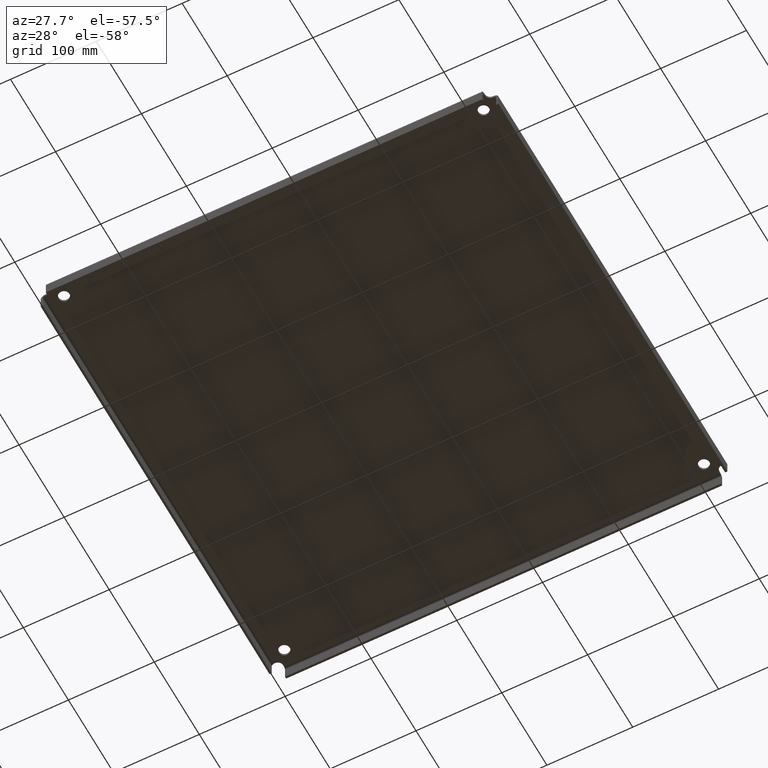
[diagram: clean part render]
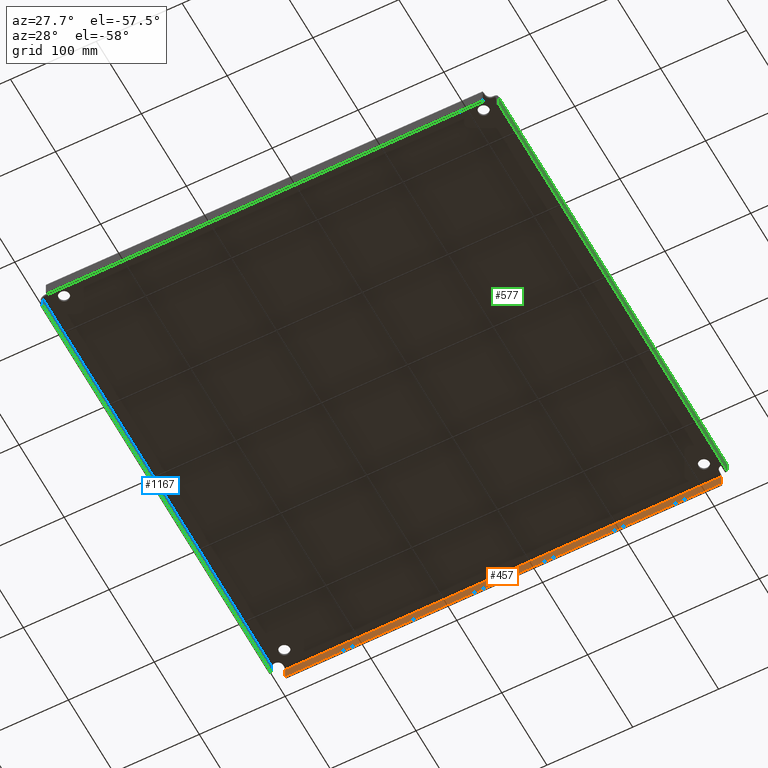
[diagram: same view with three faces highlighted in distinct colors, each labeled with its STEP entity id]
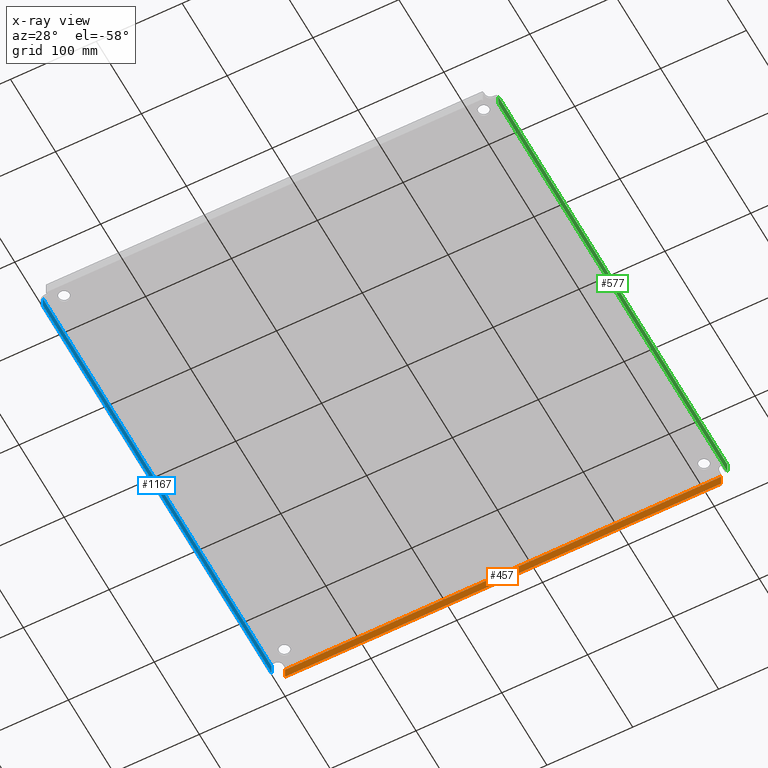
[diagram: x-ray of the same camera — body ghosted, the three highlighted faces saturated]
A machine part, auxiliary view with three faces highlighted in distinct colors.
The next image is the same camera in x-ray (body ghosted, the three faces saturated) — at least one of them is partly hidden behind the body in this view.
Their STEP definitions:

[orange] entity #457 — the highlighted planar face has unit normal (0, 1, 0).
#3 = CARTESIAN_POINT ( 'NONE',  ( -3.316296614246993200, -24.21211278189821300, -29.37476460107778600 ) ) ;
#6 = CARTESIAN_POINT ( 'NONE',  ( -3.316296614246993200, -24.21211278189821300, 0.2708774962825973300 ) ) ;
#29 = VECTOR ( 'NONE', #493, 39.37007874015748100 ) ;
#39 = EDGE_LOOP ( 'NONE', ( #1387, #1137, #288, #364 ) ) ;
#65 = FACE_OUTER_BOUND ( 'NONE', #39, .T. ) ;
#79 = VECTOR ( 'NONE', #112, 39.37007874015748100 ) ;
#108 = DIRECTION ( 'NONE',  ( 0.0000000000000000000, -0.0000000000000000000, 1.000000000000000000 ) ) ;
#112 = DIRECTION ( 'NONE',  ( 1.000000000000000000, 0.0000000000000000000, 0.0000000000000000000 ) ) ;
#159 = CARTESIAN_POINT ( 'NONE',  ( -23.31629661424701200, -24.21211278189821300, 0.2708774962825973300 ) ) ;
#173 = VERTEX_POINT ( 'NONE', #1089 ) ;
#265 = VECTOR ( 'NONE', #1243, 39.37007874015748100 ) ;
#288 = ORIENTED_EDGE ( 'NONE', *, *, #888, .T. ) ;
#343 = VECTOR ( 'NONE', #1385, 39.37007874015748100 ) ;
#364 = ORIENTED_EDGE ( 'NONE', *, *, #606, .T. ) ;
#457 = ADVANCED_FACE ( 'NONE', ( #65 ), #795, .F. ) ;
#493 = DIRECTION ( 'NONE',  ( 0.0000000000000000000, 0.0000000000000000000, -1.000000000000000000 ) ) ;
#596 = VERTEX_POINT ( 'NONE', #3 ) ;
#606 = EDGE_CURVE ( 'NONE', #698, #173, #695, .T. ) ;
#617 = EDGE_CURVE ( 'NONE', #173, #596, #649, .T. ) ;
#649 = LINE ( 'NONE', #6, #343 ) ;
#695 = LINE ( 'NONE', #1159, #79 ) ;
#698 = VERTEX_POINT ( 'NONE', #1053 ) ;
#767 = AXIS2_PLACEMENT_3D ( 'NONE', #1374, #1144, #108 ) ;
#795 = PLANE ( 'NONE',  #767 ) ;
#866 = CARTESIAN_POINT ( 'NONE',  ( -23.31629661424701200, -24.21211278189821300, -29.37476460107778600 ) ) ;
#888 = EDGE_CURVE ( 'NONE', #970, #698, #947, .T. ) ;
#947 = LINE ( 'NONE', #159, #29 ) ;
#970 = VERTEX_POINT ( 'NONE', #866 ) ;
#1053 = CARTESIAN_POINT ( 'NONE',  ( -23.31629661424701200, -24.21211278189821300, -29.89476460107778500 ) ) ;
#1089 = CARTESIAN_POINT ( 'NONE',  ( -3.316296614246995400, -24.21211278189821300, -29.89476460107778500 ) ) ;
#1127 = EDGE_CURVE ( 'NONE', #596, #970, #1241, .T. ) ;
#1137 = ORIENTED_EDGE ( 'NONE', *, *, #1127, .T. ) ;
#1144 = DIRECTION ( 'NONE',  ( 0.0000000000000000000, 1.000000000000000000, 0.0000000000000000000 ) ) ;
#1159 = CARTESIAN_POINT ( 'NONE',  ( -23.71629661424701000, -24.21211278189821300, -29.89476460107778500 ) ) ;
#1241 = LINE ( 'NONE', #1461, #265 ) ;
#1243 = DIRECTION ( 'NONE',  ( -1.000000000000000000, 0.0000000000000000000, -0.0000000000000000000 ) ) ;
#1374 = CARTESIAN_POINT ( 'NONE',  ( -23.71629661424701000, -24.21211278189821300, 0.2708774962825973300 ) ) ;
#1385 = DIRECTION ( 'NONE',  ( 0.0000000000000000000, 0.0000000000000000000, 1.000000000000000000 ) ) ;
#1387 = ORIENTED_EDGE ( 'NONE', *, *, #617, .T. ) ;
#1461 = CARTESIAN_POINT ( 'NONE',  ( -23.31629661424701200, -24.21211278189821300, -29.37476460107778600 ) ) ;

[blue] entity #1167 — the highlighted planar face has unit normal (-1, 0, 0).
#34 = ORIENTED_EDGE ( 'NONE', *, *, #861, .T. ) ;
#63 = LINE ( 'NONE', #1200, #625 ) ;
#80 = CARTESIAN_POINT ( 'NONE',  ( -23.71629661424701000, -24.61211278189821900, 0.2708774962825973300 ) ) ;
#94 = DIRECTION ( 'NONE',  ( 0.0000000000000000000, 0.0000000000000000000, 1.000000000000000000 ) ) ;
#142 = VERTEX_POINT ( 'NONE', #616 ) ;
#230 = FACE_OUTER_BOUND ( 'NONE', #470, .T. ) ;
#245 = LINE ( 'NONE', #1219, #832 ) ;
#414 = VERTEX_POINT ( 'NONE', #547 ) ;
#416 = EDGE_CURVE ( 'NONE', #414, #1277, #671, .T. ) ;
#434 = DIRECTION ( 'NONE',  ( 0.0000000000000000000, 1.000000000000000000, 0.0000000000000000000 ) ) ;
#470 = EDGE_LOOP ( 'NONE', ( #1478, #1174, #34, #948 ) ) ;
#510 = DIRECTION ( 'NONE',  ( -0.0000000000000000000, -1.000000000000000000, -0.0000000000000000000 ) ) ;
#547 = CARTESIAN_POINT ( 'NONE',  ( -23.71629661424701000, -44.61211278189821900, -29.89476460107778500 ) ) ;
#597 = CARTESIAN_POINT ( 'NONE',  ( -23.71629661424701000, -24.61211278189821900, -29.37476460107778600 ) ) ;
#604 = LINE ( 'NONE', #80, #1202 ) ;
#607 = DIRECTION ( 'NONE',  ( 0.0000000000000000000, 0.0000000000000000000, -1.000000000000000000 ) ) ;
#616 = CARTESIAN_POINT ( 'NONE',  ( -23.71629661424701000, -44.61211278189821900, -29.37476460107778600 ) ) ;
#625 = VECTOR ( 'NONE', #607, 39.37007874015748100 ) ;
#662 = PLANE ( 'NONE',  #1101 ) ;
#671 = LINE ( 'NONE', #1025, #950 ) ;
#688 = CARTESIAN_POINT ( 'NONE',  ( -23.71629661424701000, -24.61211278189821500, -29.89476460107778500 ) ) ;
#787 = DIRECTION ( 'NONE',  ( -1.000000000000000000, 0.0000000000000000000, 0.0000000000000000000 ) ) ;
#789 = VERTEX_POINT ( 'NONE', #597 ) ;
#832 = VECTOR ( 'NONE', #510, 39.37007874015748100 ) ;
#861 = EDGE_CURVE ( 'NONE', #142, #414, #63, .T. ) ;
#940 = EDGE_CURVE ( 'NONE', #789, #142, #245, .T. ) ;
#948 = ORIENTED_EDGE ( 'NONE', *, *, #416, .T. ) ;
#950 = VECTOR ( 'NONE', #434, 39.37007874015748100 ) ;
#1010 = DIRECTION ( 'NONE',  ( 0.0000000000000000000, 0.0000000000000000000, 1.000000000000000000 ) ) ;
#1025 = CARTESIAN_POINT ( 'NONE',  ( -23.71629661424701000, -45.01211278189821700, -29.89476460107778500 ) ) ;
#1098 = EDGE_CURVE ( 'NONE', #1277, #789, #604, .T. ) ;
#1101 = AXIS2_PLACEMENT_3D ( 'NONE', #1130, #787, #94 ) ;
#1130 = CARTESIAN_POINT ( 'NONE',  ( -23.71629661424701000, -45.01211278189821700, 0.2708774962825973300 ) ) ;
#1167 = ADVANCED_FACE ( 'NONE', ( #230 ), #662, .F. ) ;
#1174 = ORIENTED_EDGE ( 'NONE', *, *, #940, .T. ) ;
#1200 = CARTESIAN_POINT ( 'NONE',  ( -23.71629661424701000, -44.61211278189821900, 0.2708774962825973300 ) ) ;
#1202 = VECTOR ( 'NONE', #1010, 39.37007874015748100 ) ;
#1219 = CARTESIAN_POINT ( 'NONE',  ( -23.71629661424701000, -44.61211278189821900, -29.37476460107778600 ) ) ;
#1277 = VERTEX_POINT ( 'NONE', #688 ) ;
#1478 = ORIENTED_EDGE ( 'NONE', *, *, #1098, .T. ) ;

[green] entity #577 — the highlighted planar face has unit normal (1, 0, -0).
#107 = PLANE ( 'NONE',  #121 ) ;
#121 = AXIS2_PLACEMENT_3D ( 'NONE', #1143, #331, #1151 ) ;
#131 = VECTOR ( 'NONE', #681, 39.37007874015748100 ) ;
#303 = VECTOR ( 'NONE', #1459, 39.37007874015748100 ) ;
#317 = CARTESIAN_POINT ( 'NONE',  ( -2.816296614247008700, -24.11211278189821500, -29.37476460107778600 ) ) ;
#331 = DIRECTION ( 'NONE',  ( 1.000000000000000000, 3.122111992759158500E-016, -0.0000000000000000000 ) ) ;
#348 = EDGE_LOOP ( 'NONE', ( #612, #989, #1370, #528 ) ) ;
#372 = LINE ( 'NONE', #884, #303 ) ;
#426 = LINE ( 'NONE', #555, #131 ) ;
#471 = CARTESIAN_POINT ( 'NONE',  ( -2.816296614247008700, -24.11211278189821500, -29.89476460107778500 ) ) ;
#475 = DIRECTION ( 'NONE',  ( -3.122111992759158000E-016, 1.000000000000000000, -0.0000000000000000000 ) ) ;
#528 = ORIENTED_EDGE ( 'NONE', *, *, #764, .T. ) ;
#555 = CARTESIAN_POINT ( 'NONE',  ( -2.816296614246995800, -24.61211278189821200, -29.89476460107778500 ) ) ;
#577 = ADVANCED_FACE ( 'NONE', ( #1411 ), #107, .T. ) ;
#598 = VERTEX_POINT ( 'NONE', #922 ) ;
#612 = ORIENTED_EDGE ( 'NONE', *, *, #1250, .T. ) ;
#681 = DIRECTION ( 'NONE',  ( -0.0000000000000000000, -0.0000000000000000000, 1.000000000000000000 ) ) ;
#764 = EDGE_CURVE ( 'NONE', #1386, #1334, #1464, .T. ) ;
#854 = CARTESIAN_POINT ( 'NONE',  ( -2.816296614246993600, -44.61211278189821900, -29.89476460107778500 ) ) ;
#884 = CARTESIAN_POINT ( 'NONE',  ( -2.816296614246993600, -44.61211278189821900, -29.89476460107778500 ) ) ;
#922 = CARTESIAN_POINT ( 'NONE',  ( -2.816296614246993600, -44.61211278189821900, -29.37476460107778600 ) ) ;
#981 = CARTESIAN_POINT ( 'NONE',  ( -2.816296614246995800, -24.61211278189821200, -29.37476460107778600 ) ) ;
#989 = ORIENTED_EDGE ( 'NONE', *, *, #1168, .T. ) ;
#1087 = EDGE_CURVE ( 'NONE', #1386, #598, #372, .T. ) ;
#1091 = LINE ( 'NONE', #317, #1393 ) ;
#1094 = VECTOR ( 'NONE', #475, 39.37007874015748100 ) ;
#1142 = DIRECTION ( 'NONE',  ( 3.122111992759158500E-016, -1.000000000000000000, -0.0000000000000000000 ) ) ;
#1143 = CARTESIAN_POINT ( 'NONE',  ( -2.816296614247008700, -24.11211278189821500, -29.89476460107778500 ) ) ;
#1151 = DIRECTION ( 'NONE',  ( -3.122111992759158500E-016, 1.000000000000000000, 0.0000000000000000000 ) ) ;
#1168 = EDGE_CURVE ( 'NONE', #1397, #598, #1091, .T. ) ;
#1195 = CARTESIAN_POINT ( 'NONE',  ( -2.816296614246995800, -24.61211278189821200, -29.89476460107778500 ) ) ;
#1250 = EDGE_CURVE ( 'NONE', #1334, #1397, #426, .T. ) ;
#1334 = VERTEX_POINT ( 'NONE', #1195 ) ;
#1370 = ORIENTED_EDGE ( 'NONE', *, *, #1087, .F. ) ;
#1386 = VERTEX_POINT ( 'NONE', #854 ) ;
#1393 = VECTOR ( 'NONE', #1142, 39.37007874015748100 ) ;
#1397 = VERTEX_POINT ( 'NONE', #981 ) ;
#1411 = FACE_OUTER_BOUND ( 'NONE', #348, .T. ) ;
#1459 = DIRECTION ( 'NONE',  ( -0.0000000000000000000, -0.0000000000000000000, 1.000000000000000000 ) ) ;
#1464 = LINE ( 'NONE', #471, #1094 ) ;